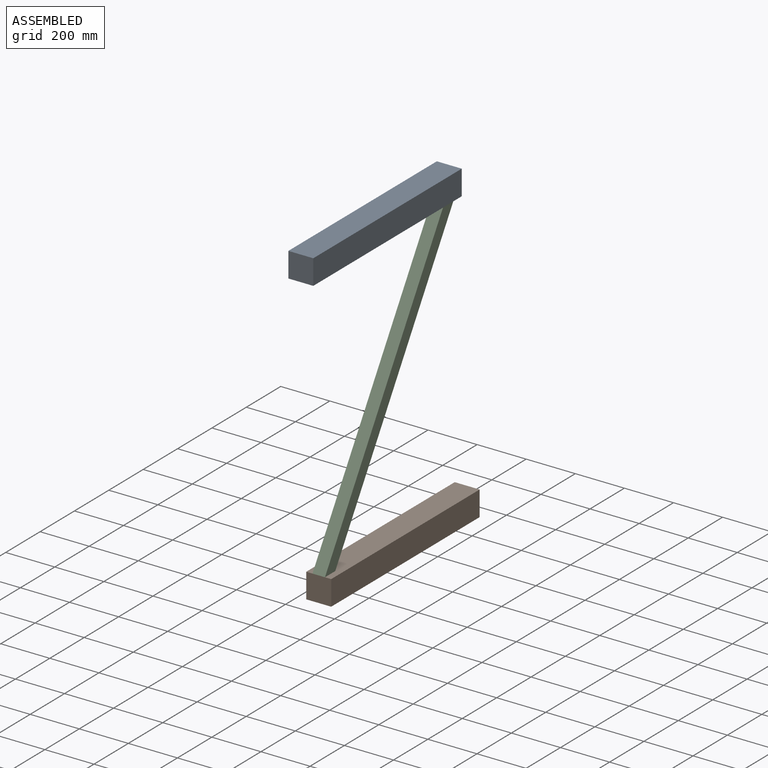
[diagram: assembled view]
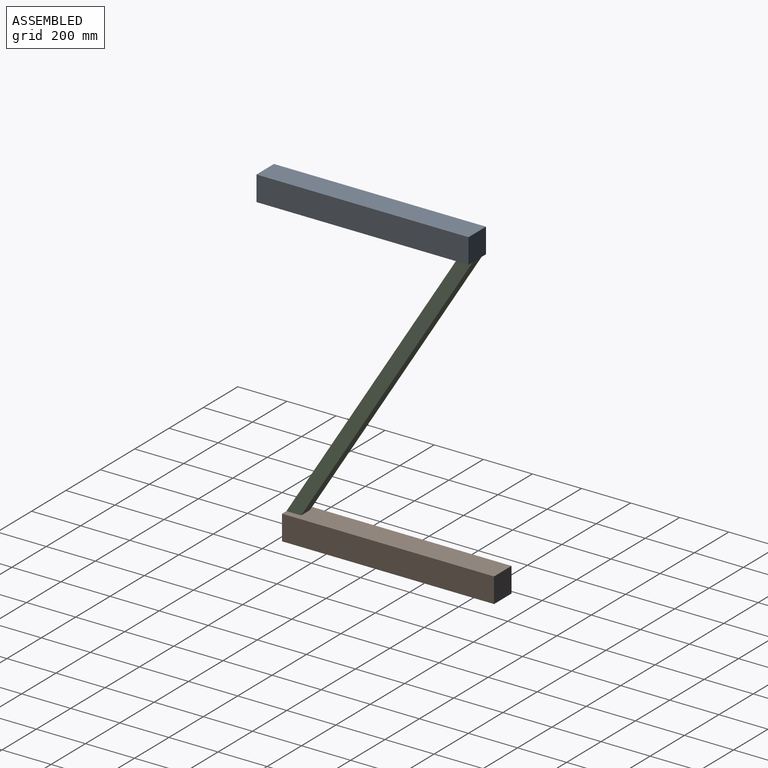
[diagram: assembled view, second angle]
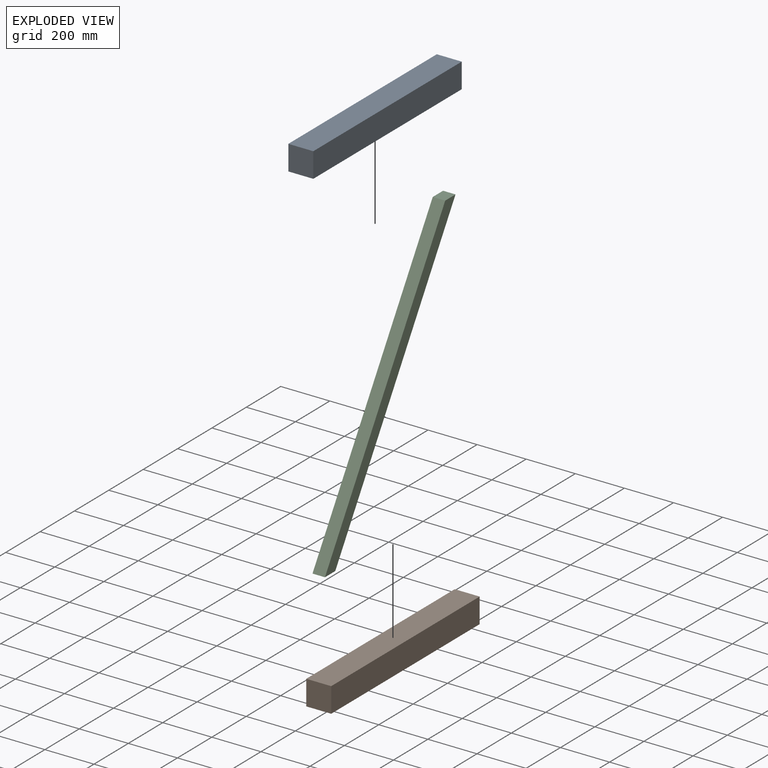
[diagram: exploded view]
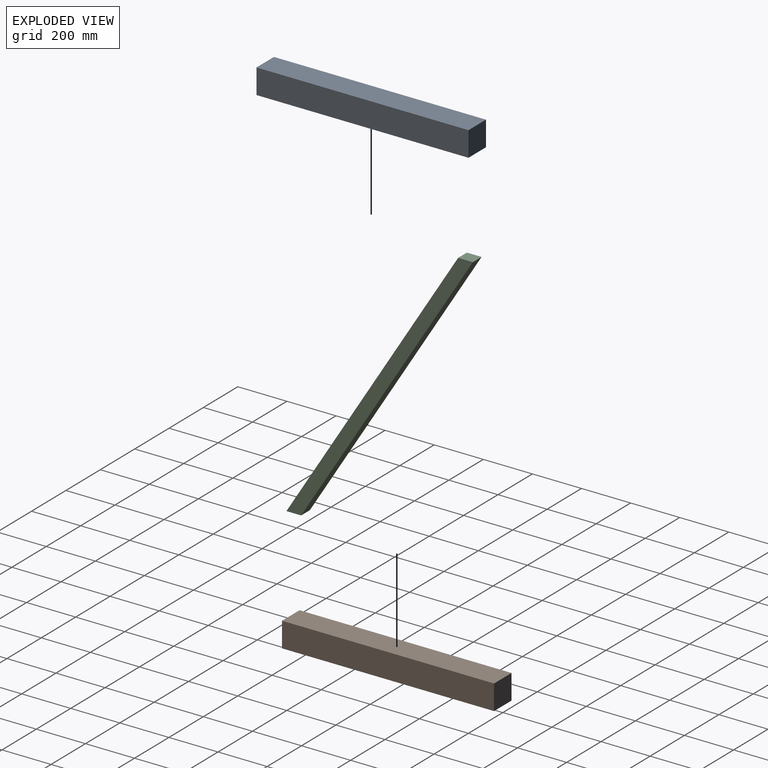
[diagram: exploded view, second angle]
ASSEMBLY  parts=3 mates=2
PART A: 6 faces, bbox 101.6x863.6x101.6 mm
  f0: plane 863.6x101.6mm, normal (0,0,-1), area 87741.8mm2, adj f1,f3,f4,f5
  f1: plane 863.6x101.6mm, normal (1,0,0), area 87741.8mm2, adj f0,f2,f4,f5
  f2: plane 863.6x101.6mm, normal (0,0,1), area 87741.8mm2, adj f1,f3,f4,f5
  f3: plane 863.6x101.6mm, normal (-1,0,0), area 87741.8mm2, adj f0,f2,f4,f5
  f4: plane 101.6x101.6mm, normal (0,-1,0), area 10322.6mm2, adj f0,f1,f2,f3
  f5: plane 101.6x101.6mm, normal (0,1,0), area 10322.6mm2, adj f0,f1,f2,f3
PART B: same geometry as A
PART C: 6 faces, bbox 50.8x1351.8x50.8 mm
  f0: plane 1320.04x50.8mm, normal (0,0,-1), area 67058.3mm2, adj f1,f2,f4,f5
  f1: plane 1351.79x50.8mm, normal (1,0,0), area 67058.3mm2, adj f0,f3,f4,f5
  f2: plane 1351.79x50.8mm, normal (-1,0,0), area 67058.3mm2, adj f0,f3,f4,f5
  f3: plane 1320.04x50.8mm, normal (0,0,1), area 67058.3mm2, adj f1,f2,f4,f5
  f4: plane 50.8x50.8mm, normal (0,0.85,-0.53), area 3043mm2, adj f0,f1,f2,f3
  f5: plane 50.8x50.8mm, normal (0,-0.85,0.53), area 3043mm2, adj f0,f1,f2,f3
PLACE A t=(0,-104.18,1221.06)mm
PLACE B at identity
PLACE C rot(axis=(0,0.87,0.48),180deg) t=(101.6,-125.72,1183.72)mm
MATE fastened A.f0 <-> C.f4  axis (0,0,-1) through (0,-104.18,1170.26)mm
MATE fastened C.f5 <-> B.f2  axis (0,0,-1) through (0,-863.6,50.8)mm
